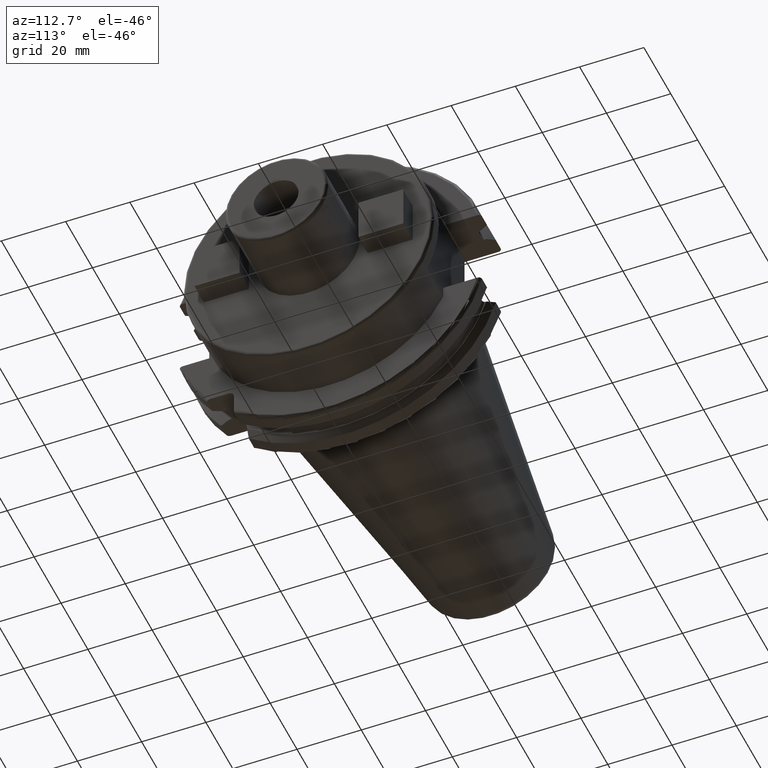
[diagram: clean part render]
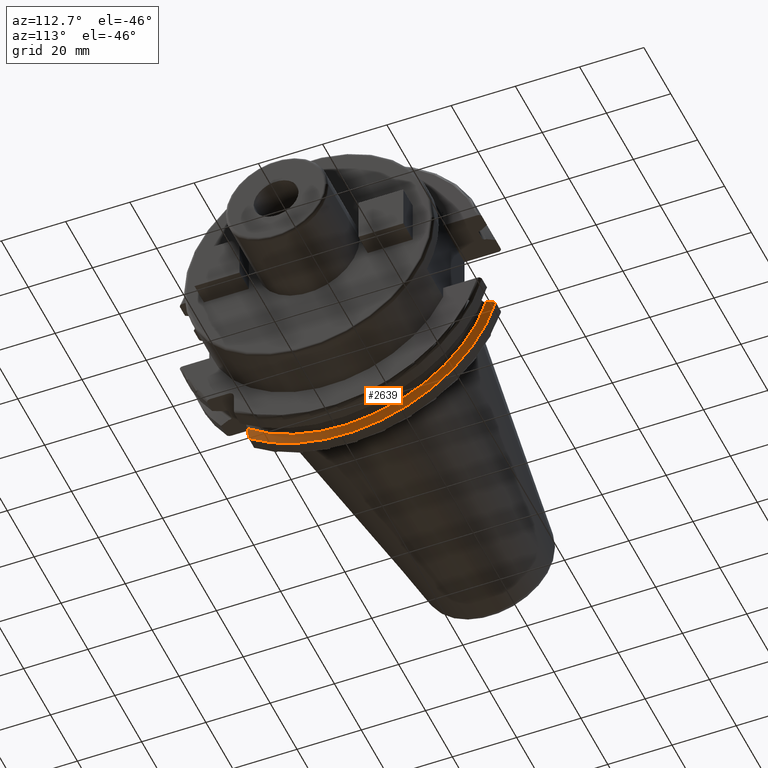
[diagram: same view with one face highlighted and labeled with its STEP entity id]
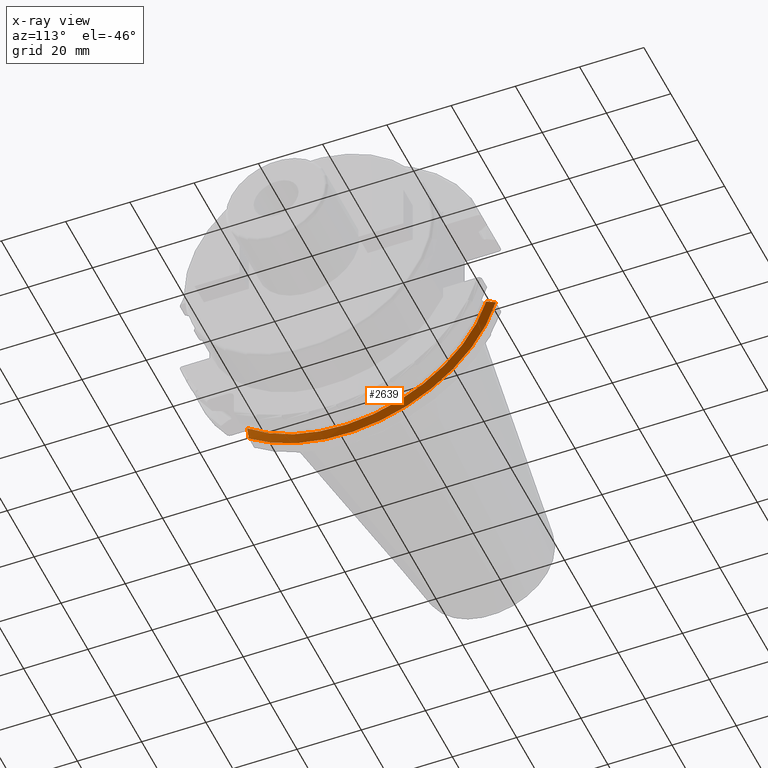
[diagram: x-ray of the same camera — body ghosted, the highlighted face saturated]
A machine part, auxiliary view. The second image highlights one B-rep face of the part: STEP entity #2639.
The next image is the same camera in x-ray: the body ghosted, the highlighted face saturated — about 0% of this face is hidden behind the body in this view.
In plain terms, the highlighted conical surface has half-angle 60 deg.
Its self-contained STEP definition (entity closure, byte-faithful):
#365=CARTESIAN_POINT('',(7.934621614173E0,0.E0,0.E0));
#366=DIRECTION('',(1.E0,0.E0,0.E0));
#367=DIRECTION('',(0.E0,-6.124647345473E-1,-7.904979120376E-1));
#368=AXIS2_PLACEMENT_3D('',#365,#366,#367);
#489=CARTESIAN_POINT('',(9.2625E0,0.E0,0.E0));
#490=DIRECTION('',(-1.E0,0.E0,0.E0));
#491=DIRECTION('',(0.E0,9.606411165078E-1,-2.777924499957E-1));
#492=AXIS2_PLACEMENT_3D('',#489,#490,#491);
#907=CARTESIAN_POINT('',(9.2625E0,4.460981716077E1,-1.29E1));
#908=CARTESIAN_POINT('',(9.118283773553E0,4.486984125009E1,-1.29E1));
#909=CARTESIAN_POINT('',(8.827633549554E0,4.539353719098E1,-1.29E1));
#910=CARTESIAN_POINT('',(8.385043355543E0,4.618996220278E1,-1.29E1));
#911=CARTESIAN_POINT('',(8.085504386120E0,4.672829507383E1,-1.29E1));
#912=CARTESIAN_POINT('',(7.934621614173E0,4.699929686974E1,-1.29E1));
#914=CARTESIAN_POINT('',(9.2625E0,-2.985E1,-3.557278857662E1));
#915=CARTESIAN_POINT('',(9.122796459387E0,-2.985E1,-3.588866659244E1));
#916=CARTESIAN_POINT('',(8.838204990616E0,-2.985E1,-3.652866450573E1));
#917=CARTESIAN_POINT('',(8.396067032347E0,-2.985E1,-3.751242476101E1));
#918=CARTESIAN_POINT('',(8.090246731407E0,-2.985E1,-3.818590359837E1));
#919=CARTESIAN_POINT('',(7.934621614173E0,-2.985E1,-3.852689198793E1));
#1487=CARTESIAN_POINT('',(9.2625E0,4.460981716077E1,-1.29E1));
#1489=VERTEX_POINT('',#1487);
#1531=VERTEX_POINT('',#912);
#1577=CARTESIAN_POINT('',(9.2625E0,-2.985E1,-3.557278857662E1));
#1578=VERTEX_POINT('',#1577);
#1621=VERTEX_POINT('',#919);
#2628=CARTESIAN_POINT('',(8.598560807087E0,0.E0,0.E0));
#2629=DIRECTION('',(-1.E0,0.E0,0.E0));
#2630=DIRECTION('',(0.E0,1.E0,0.E0));
#2631=AXIS2_PLACEMENT_3D('',#2628,#2629,#2630);
#2632=CONICAL_SURFACE('',#2631,4.758752358474E1,6.E1);
#2633=ORIENTED_EDGE('',*,*,#1911,.T.);
#2634=ORIENTED_EDGE('',*,*,#2196,.F.);
#2635=ORIENTED_EDGE('',*,*,#2150,.F.);
#2636=ORIENTED_EDGE('',*,*,#2318,.F.);
#2637=EDGE_LOOP('',(#2633,#2634,#2635,#2636));
#2638=FACE_OUTER_BOUND('',#2637,.F.);
#2639=ADVANCED_FACE('',(#2638),#2632,.T.);
#369=CIRCLE('',#368,4.87375E1);
#493=CIRCLE('',#492,4.643754716948E1);
#913=B_SPLINE_CURVE_WITH_KNOTS('',3,(#907,#908,#909,#910,#911,#912),
.UNSPECIFIED.,.F.,.F.,(4,1,1,4),(0.E0,3.333333333333E-1,6.666666666667E-1,1.E0),
.UNSPECIFIED.);
#920=B_SPLINE_CURVE_WITH_KNOTS('',3,(#914,#915,#916,#917,#918,#919),
.UNSPECIFIED.,.F.,.F.,(4,1,1,4),(0.E0,3.333333333333E-1,6.666666666667E-1,1.E0),
.UNSPECIFIED.);
#1911=EDGE_CURVE('',#1489,#1531,#913,.T.);
#2150=EDGE_CURVE('',#1578,#1621,#920,.T.);
#2196=EDGE_CURVE('',#1621,#1531,#369,.T.);
#2318=EDGE_CURVE('',#1489,#1578,#493,.T.);